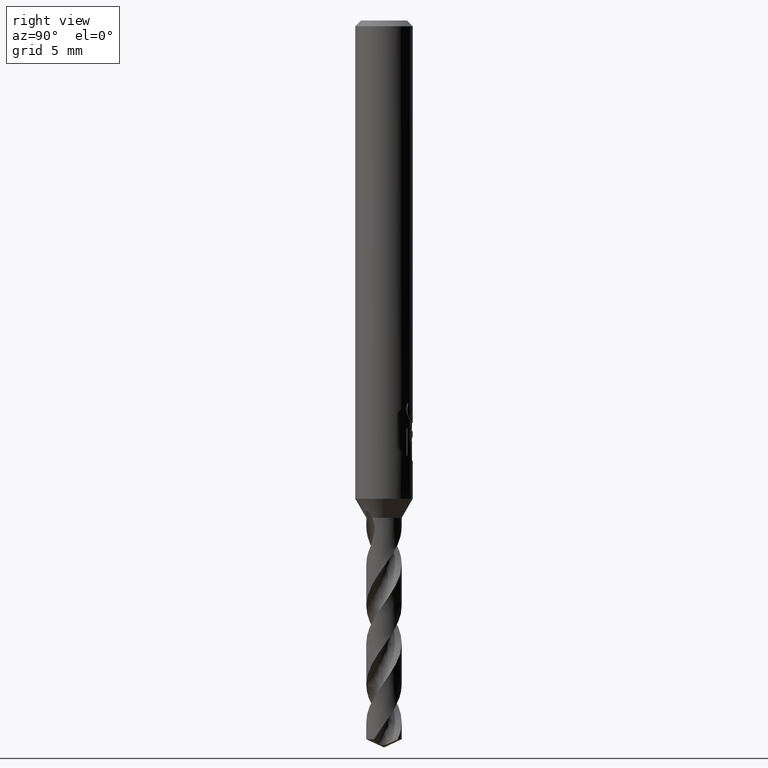
[diagram: clean part render]
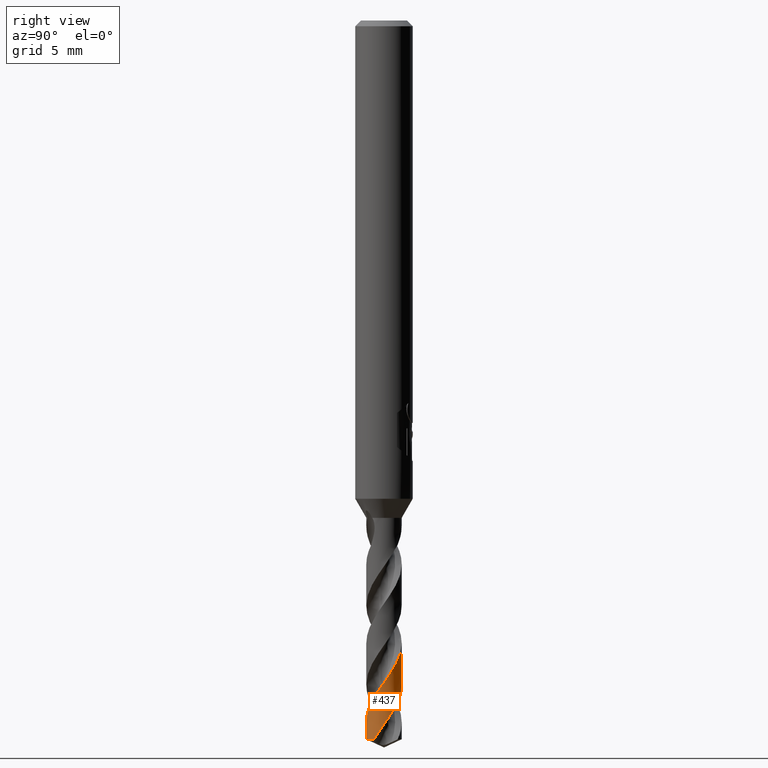
[diagram: same view with one face highlighted and labeled with its STEP entity id]
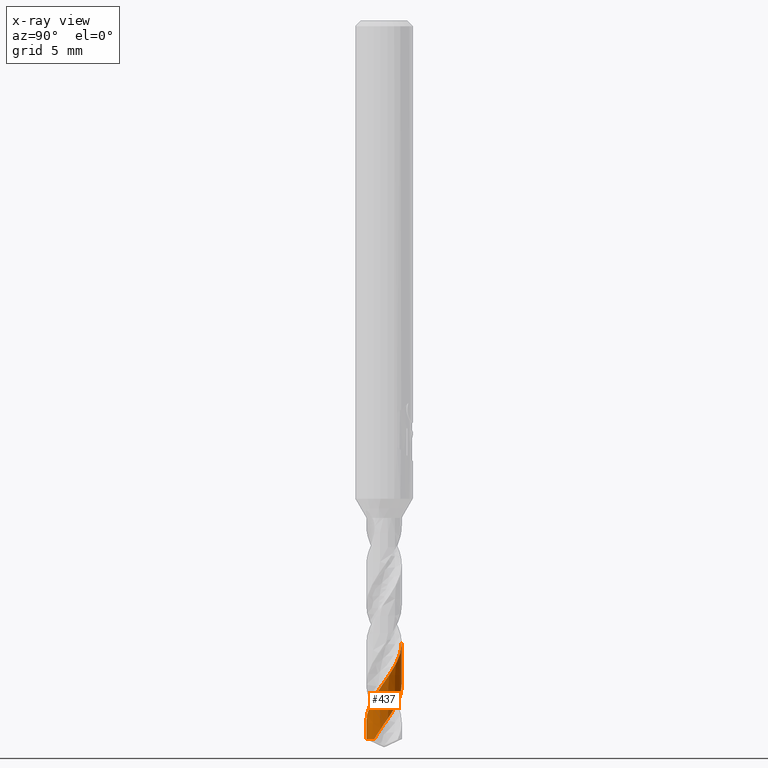
[diagram: x-ray of the same camera — body ghosted, the highlighted face saturated]
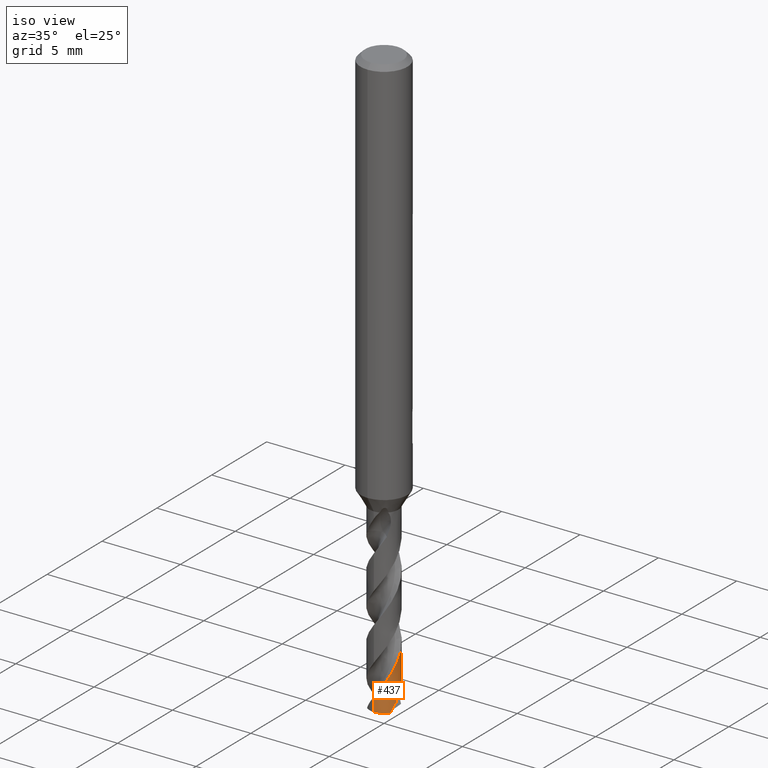
[diagram: same view with one face highlighted and labeled with its STEP entity id]
A machine part, right view. The second image highlights one B-rep face of the part: STEP entity #437.
The next image is the same camera in x-ray: the body ghosted, the highlighted face saturated — about 0% of this face is hidden behind the body in this view.
A second angle (iso view) of the same face is appended — the face is thin or edge-on in the first view.
In plain terms, the highlighted conical surface has half-angle 0 deg.
Its self-contained STEP definition (entity closure, byte-faithful):
#327=VERTEX_POINT('',#860);
#341=EDGE_CURVE('',#683,#727,#875,.T.);
#385=VERTEX_POINT('',#922);
#437=ADVANCED_FACE('',(#980),#981,.T.);
#453=EDGE_CURVE('',#385,#327,#999,.T.);
#553=EDGE_CURVE('',#627,#727,#1114,.T.);
#627=VERTEX_POINT('',#1195);
#683=VERTEX_POINT('',#1255);
#727=VERTEX_POINT('',#1300);
#747=EDGE_CURVE('',#627,#385,#1322,.T.);
#759=EDGE_CURVE('',#683,#327,#1334,.T.);
#860=CARTESIAN_POINT('',(1.10597392331517E-018,-0.924992254571093,-36.6726226609566));
#875=LINE('',#1967,#1968);
#922=CARTESIAN_POINT('',(1.13235198819291E-016,-0.925,-37.5686654162066));
#980=FACE_OUTER_BOUND('',#2981,.T.);
#981=CONICAL_SURFACE('',#2982,0.92495,8.64403942890488E-006);
#999=LINE('',#3080,#3081);
#1114=B_SPLINE_CURVE_WITH_KNOTS('',3,(#3588,#3589,#3590,#3591,#3592,#3593,#3594,#3595,#3596,#3597,#3598,#3599,#3600,#3601,#3602,#3603,#3604,#3605,#3606,#3607,#3608,#3609,#3610,#3611,#3612,#3613,#3614,#3615,#3616,#3617,#3618,#3619,#3620,#3621,#3622,#3623,#3624,#3625,#3626,#3627,#3628,#3629,#3630,#3631,#3632,#3633,#3634,#3635,#3636,#3637,#3638,#3639,#3640,#3641,#3642,#3643,#3644,#3645,#3646,#3647,#3648,#3649,#3650,#3651,#3652,#3653,#3654,#3655,#3656,#3657,#3658,#3659,#3660,#3661,#3662,#3663,#3664,#3665),.UNSPECIFIED.,.F.,.F.,(4,2,2,2,2,2,2,2,2,2,2,2,2,2,2,2,2,2,2,2,2,2,2,2,2,2,2,2,2,2,2,2,2,2,2,2,2,2,4),(0.0,0.175575967498542,0.360828519478574,1.05434292255817,1.14884404777667,1.83973464778452,2.04112506220054,2.49938006816865,2.93639938622632,3.47251715777154,3.67386599290652,4.13394250316937,4.57152570850511,5.10815653292086,5.3094364090775,5.77050128530134,6.20751829246539,6.74469876623538,6.94654488725072,7.40809844879235,7.84943071925,8.3871396234596,8.58765552124518,9.04980391125373,9.48430552195443,10.0217875624723,10.2183175586294,10.6105977311638,11.5362222291659,11.6507062022349,11.9174526200369,12.0692040576392,12.1504385658655,12.1848521361453,12.2009557850324,12.218424534362,12.2468275413846,12.3092312670282,12.3409704378504),.UNSPECIFIED.);
#1195=CARTESIAN_POINT('',(0.765392373126078,-0.519422289818632,-37.5686654162066));
#1255=CARTESIAN_POINT('',(-9.88212959703078E-015,0.924956570194605,-32.544416539254));
#1300=CARTESIAN_POINT('',(1.6430154934895E-014,0.924975379347988,-34.7203845617481));
#1322=CIRCLE('',#5082,0.925);
#1334=B_SPLINE_CURVE_WITH_KNOTS('',3,(#5096,#5097,#5098,#5099,#5100,#5101,#5102,#5103,#5104,#5105,#5106,#5107,#5108,#5109,#5110,#5111,#5112,#5113,#5114,#5115,#5116,#5117,#5118,#5119,#5120,#5121,#5122,#5123,#5124,#5125,#5126,#5127,#5128,#5129,#5130,#5131,#5132,#5133,#5134,#5135,#5136,#5137,#5138,#5139,#5140,#5141,#5142,#5143,#5144,#5145,#5146,#5147,#5148,#5149,#5150,#5151,#5152,#5153,#5154,#5155,#5156,#5157,#5158,#5159,#5160,#5161,#5162,#5163,#5164,#5165,#5166,#5167,#5168,#5169,#5170,#5171,#5172,#5173,#5174,#5175,#5176,#5177,#5178,#5179,#5180,#5181,#5182,#5183,#5184,#5185,#5186,#5187),.UNSPECIFIED.,.F.,.F.,(4,2,2,2,2,2,2,2,2,2,2,2,2,2,2,2,2,2,2,2,2,2,2,2,2,2,2,2,2,2,2,2,2,2,2,2,2,2,2,2,2,2,2,2,2,4),(0.0,0.0472198723982483,0.0574025586129521,0.0735373590386242,0.086846957736826,0.218038330745357,0.261691917204657,0.289044875786619,0.314351081743116,0.347731999434583,0.38465281818207,0.456731164138061,0.577930900790909,0.665369080380014,0.761272562820777,0.868852536537242,1.13142299141288,1.38932056889502,1.94142634502425,2.21493816542565,2.59325546582288,3.11005719064309,3.42902150272813,4.06135873815261,4.12153041123564,4.54978736992714,5.09998388409196,5.47381847869797,6.04042352439801,6.31233732223757,6.73123919419814,7.09755836358704,7.66420864868376,7.93565156013013,8.50201480850518,8.77416913846713,9.1762110815161,9.52846108662162,10.0689661573329,10.5930693893988,10.7136336676005,11.2022319711822,11.36974455639,11.5020738266503,11.956076389131,12.5428964801662),.UNSPECIFIED.);
#1967=CARTESIAN_POINT('',(-1.13310853606079E-016,0.92495,-31.7843327081033));
#1968=VECTOR('',#5311,1.0);
#2981=EDGE_LOOP('',(#5442,#5443,#5444,#5445,#5446));
#2982=AXIS2_PLACEMENT_3D('',#5447,#5448,#5449);
#3080=CARTESIAN_POINT('',(1.13229075787522E-016,-0.92495,-31.7843327081033));
#3081=VECTOR('',#5471,1.0);
#3588=CARTESIAN_POINT('',(0.765392373126077,-0.519422289818627,-37.5686654162066));
#3589=CARTESIAN_POINT('',(0.784380514247591,-0.491441664772919,-37.5208977650976));
#3590=CARTESIAN_POINT('',(0.801760341298683,-0.462529020240874,-37.4731786771621));
#3591=CARTESIAN_POINT('',(0.834075052254815,-0.401494554564502,-37.3747006776217));
#3592=CARTESIAN_POINT('',(0.848779109665413,-0.369376924747079,-37.32383971954));
#3593=CARTESIAN_POINT('',(0.909650441113357,-0.213519169443103,-37.0843601120505));
#3594=CARTESIAN_POINT('',(0.930761006716102,-0.0818331462465088,-36.9022410147496));
#3595=CARTESIAN_POINT('',(0.922677466299594,0.0678252243879808,-36.6879730523665));
#3596=CARTESIAN_POINT('',(0.921189631044293,0.0856921392008494,-36.6622317261582));
#3597=CARTESIAN_POINT('',(0.904467342095256,0.234112716960245,-36.448609682445));
#3598=CARTESIAN_POINT('',(0.862153669552173,0.359927809416848,-36.2671658103587));
#3599=CARTESIAN_POINT('',(0.775439273209969,0.505727394287139,-36.0251070000383));
#3600=CARTESIAN_POINT('',(0.753887361033258,0.537330934171917,-35.9701649795628));
#3601=CARTESIAN_POINT('',(0.676789642705819,0.636529680029753,-35.7910329888305));
#3602=CARTESIAN_POINT('',(0.613667366341773,0.697627858523507,-35.668607518485));
#3603=CARTESIAN_POINT('',(0.475043882724221,0.798064293605595,-35.4262369156211));
#3604=CARTESIAN_POINT('',(0.401238562023327,0.837578458419493,-35.3067460491545));
#3605=CARTESIAN_POINT('',(0.227409099607857,0.902394507541183,-35.0431808027575));
#3606=CARTESIAN_POINT('',(0.126518373206019,0.921927599049064,-34.9009925087592));
#3607=CARTESIAN_POINT('',(-0.0135443842239926,0.925666846836106,-34.7010999657655));
#3608=CARTESIAN_POINT('',(-0.0517352960644762,0.924321039060561,-34.6462148538446));
#3609=CARTESIAN_POINT('',(-0.176987178772398,0.91209304406096,-34.4667734413281));
#3610=CARTESIAN_POINT('',(-0.262599416249737,0.891256566140638,-34.3439838849488));
#3611=CARTESIAN_POINT('',(-0.421754644597107,0.827453400397262,-34.1012057547331));
#3612=CARTESIAN_POINT('',(-0.494563017818746,0.786079291227331,-33.9816806456056));
#3613=CARTESIAN_POINT('',(-0.642109173230414,0.673576255918907,-33.7180831370391));
#3614=CARTESIAN_POINT('',(-0.712431607998869,0.598645622455958,-33.5759001478793));
#3615=CARTESIAN_POINT('',(-0.790253966929606,0.482199260866015,-33.3760813727008));
#3616=CARTESIAN_POINT('',(-0.809457485789412,0.449220706216457,-33.3212680967693));
#3617=CARTESIAN_POINT('',(-0.865943165917025,0.336713958674217,-33.1417541615013));
#3618=CARTESIAN_POINT('',(-0.894002664012377,0.253085426200221,-33.0188265631593));
#3619=CARTESIAN_POINT('',(-0.924857011022342,0.0845115994394349,-32.7761784326368));
#3620=CARTESIAN_POINT('',(-0.92868649245956,0.0010516662091582,-32.6569309109765));
#3621=CARTESIAN_POINT('',(-0.91229888419972,-0.183571282582862,-32.3936029187602));
#3622=CARTESIAN_POINT('',(-0.886458177288607,-0.283031328303463,-32.251416843275));
#3623=CARTESIAN_POINT('',(-0.829479428524753,-0.411054092608912,-32.0515027355334));
#3624=CARTESIAN_POINT('',(-0.811802216592632,-0.44495118138851,-31.9965908967525));
#3625=CARTESIAN_POINT('',(-0.746745122658854,-0.55279584180876,-31.8169867676707));
#3626=CARTESIAN_POINT('',(-0.690983517157953,-0.621138288764363,-31.6940627697022));
#3627=CARTESIAN_POINT('',(-0.564327978826589,-0.737656893513796,-31.4503852564251));
#3628=CARTESIAN_POINT('',(-0.495114876271323,-0.785762831385403,-31.3300880839133));
#3629=CARTESIAN_POINT('',(-0.329356363733435,-0.870339594705546,-31.0657427521712));
#3630=CARTESIAN_POINT('',(-0.231380861533836,-0.901306147578169,-30.9235759782654));
#3631=CARTESIAN_POINT('',(-0.092965290213835,-0.921040290421541,-30.7240762827117));
#3632=CARTESIAN_POINT('',(-0.0551462363420279,-0.924078245976952,-30.6695847699962));
#3633=CARTESIAN_POINT('',(0.070546454734379,-0.926402604481755,-30.4903238564789));
#3634=CARTESIAN_POINT('',(0.158125360750212,-0.915561212184012,-30.36732869851));
#3635=CARTESIAN_POINT('',(0.322883147617352,-0.870689100030256,-30.1255065053255));
#3636=CARTESIAN_POINT('',(0.39924039905627,-0.838404283386813,-30.0071551437473));
#3637=CARTESIAN_POINT('',(0.558204430619525,-0.744532834237145,-29.7449189355787));
#3638=CARTESIAN_POINT('',(0.636770523360065,-0.678502398866895,-29.6029748500079));
#3639=CARTESIAN_POINT('',(0.727053779955913,-0.572948792529293,-29.4047685818148));
#3640=CARTESIAN_POINT('',(0.749440542849017,-0.543336581233159,-29.3513946775145));
#3641=CARTESIAN_POINT('',(0.811143642118129,-0.450603825405646,-29.1923342754664));
#3642=CARTESIAN_POINT('',(0.844796495363684,-0.383914183574037,-29.0875521904075));
#3643=CARTESIAN_POINT('',(0.929904437573281,-0.147782049829723,-28.7329990234062));
#3644=CARTESIAN_POINT('',(0.940798775969694,0.0322440173726759,-28.4829320863451));
#3645=CARTESIAN_POINT('',(0.897594460879294,0.224206390390812,-28.2048875980591));
#3646=CARTESIAN_POINT('',(0.892079880566107,0.245244618783504,-28.1743444321979));
#3647=CARTESIAN_POINT('',(0.87115837466461,0.314871322460574,-28.0728464959415));
#3648=CARTESIAN_POINT('',(0.852820978564851,0.361508246357305,-28.0048386394204));
#3649=CARTESIAN_POINT('',(0.818199552977871,0.432244456055311,-27.8924042406219));
#3650=CARTESIAN_POINT('',(0.804730022516641,0.456755589124895,-27.8515353882718));
#3651=CARTESIAN_POINT('',(0.782955603452119,0.492608387429901,-27.7876544695237));
#3652=CARTESIAN_POINT('',(0.775196456395363,0.50471641369002,-27.7652769211405));
#3653=CARTESIAN_POINT('',(0.763955298415356,0.521417214388152,-27.7331188333065));
#3654=CARTESIAN_POINT('',(0.757830120601282,0.530460106128628,-27.7154775181767));
#3655=CARTESIAN_POINT('',(0.744854341569095,0.548369048938007,-27.6818536544483));
#3656=CARTESIAN_POINT('',(0.740596587997576,0.554108386723738,-27.671212355858));
#3657=CARTESIAN_POINT('',(0.731436972390864,0.56615220808101,-27.6491603945154));
#3658=CARTESIAN_POINT('',(0.726519786947513,0.572451921477228,-27.637781924982));
#3659=CARTESIAN_POINT('',(0.713169262673191,0.589092371138201,-27.6081173738842));
#3660=CARTESIAN_POINT('',(0.704489464191559,0.59946020642504,-27.5900274459434));
#3661=CARTESIAN_POINT('',(0.675238722313121,0.632808396456147,-27.532911005788));
#3662=CARTESIAN_POINT('',(0.653116479417904,0.655760899366488,-27.4952229236873));
#3663=CARTESIAN_POINT('',(0.616086236916864,0.690065503264373,-27.4398981271289));
#3664=CARTESIAN_POINT('',(0.603039171646072,0.701512446089887,-27.4216055230125));
#3665=CARTESIAN_POINT('',(0.589400108508059,0.712790267500028,-27.4036));
#5082=AXIS2_PLACEMENT_3D('',#5843,#5844,#5845);
#5096=CARTESIAN_POINT('',(0.642884402266188,-0.664952704088734,-27.4036));
#5097=CARTESIAN_POINT('',(0.636670730167389,-0.670960316389235,-27.4167546620834));
#5098=CARTESIAN_POINT('',(0.630350256363287,-0.676903014539543,-27.4298787435103));
#5099=CARTESIAN_POINT('',(0.622513291085962,-0.684064234619346,-27.4458071380113));
#5100=CARTESIAN_POINT('',(0.621117586351333,-0.685331803957977,-27.4486309819827));
#5101=CARTESIAN_POINT('',(0.617495499677036,-0.688601152118165,-27.4559255978662));
#5102=CARTESIAN_POINT('',(0.615261021023809,-0.690598479960258,-27.4603930347927));
#5103=CARTESIAN_POINT('',(0.611156279511777,-0.69423168579655,-27.4685392536153));
#5104=CARTESIAN_POINT('',(0.609291234582837,-0.695869186862352,-27.4722182010309));
#5105=CARTESIAN_POINT('',(0.588932405707068,-0.713599020060686,-27.512132544792));
#5106=CARTESIAN_POINT('',(0.569763122647016,-0.729021417400453,-27.5475022624895));
#5107=CARTESIAN_POINT('',(0.542694634092185,-0.749011768626875,-27.5948947724372));
#5108=CARTESIAN_POINT('',(0.535847765299091,-0.753926042570833,-27.6066853964837));
#5109=CARTESIAN_POINT('',(0.52455627898528,-0.761797105883497,-27.6258554159362));
#5110=CARTESIAN_POINT('',(0.520174454790984,-0.764796016316716,-27.6332293865435));
#5111=CARTESIAN_POINT('',(0.511675445660537,-0.770505548744691,-27.6474224329941));
#5112=CARTESIAN_POINT('',(0.507566124642924,-0.773218842833083,-27.6542365232546));
#5113=CARTESIAN_POINT('',(0.497978296693273,-0.77943992170518,-27.6700398633243));
#5114=CARTESIAN_POINT('',(0.49248699615854,-0.782921255251314,-27.6790199642914));
#5115=CARTESIAN_POINT('',(0.480845125686128,-0.790130902348939,-27.6979467740213));
#5116=CARTESIAN_POINT('',(0.474694750655511,-0.793841084324896,-27.7078814418642));
#5117=CARTESIAN_POINT('',(0.456435780093565,-0.80456837721098,-27.7372622571889));
#5118=CARTESIAN_POINT('',(0.44439951876956,-0.811275514521527,-27.7565300327697));
#5119=CARTESIAN_POINT('',(0.411652810317654,-0.828583345822062,-27.8087957693636));
#5120=CARTESIAN_POINT('',(0.390805705849596,-0.838611878476652,-27.841820020077));
#5121=CARTESIAN_POINT('',(0.354495598099065,-0.854446511531871,-27.8985650815411));
#5122=CARTESIAN_POINT('',(0.339105796988886,-0.860670355718271,-27.9223870446021));
#5123=CARTESIAN_POINT('',(0.306504362594994,-0.872844770880619,-27.9722755420058));
#5124=CARTESIAN_POINT('',(0.28923303490341,-0.878720844410013,-27.9983781656676));
#5125=CARTESIAN_POINT('',(0.252162383859663,-0.890116507136401,-28.0536492051337));
#5126=CARTESIAN_POINT('',(0.232429246603116,-0.895472436434946,-28.0825878672011));
#5127=CARTESIAN_POINT('',(0.163725802129522,-0.911688680425173,-28.1825469533601));
#5128=CARTESIAN_POINT('',(0.114172098686781,-0.919206851963723,-28.2531396566232));
#5129=CARTESIAN_POINT('',(0.0152924774792318,-0.926097557551066,-28.3937981089318));
#5130=CARTESIAN_POINT('',(-0.0338357882271308,-0.92560042100938,-28.4636831497853));
#5131=CARTESIAN_POINT('',(-0.187138304649561,-0.911849044677926,-28.682727189828));
#5132=CARTESIAN_POINT('',(-0.289323049568507,-0.884757402143378,-28.8306400639428));
#5133=CARTESIAN_POINT('',(-0.432064760973752,-0.819458942547438,-29.053800762969));
#5134=CARTESIAN_POINT('',(-0.47748031300969,-0.793860955332012,-29.1275455134643));
#5135=CARTESIAN_POINT('',(-0.580082359614853,-0.724007681820136,-29.3035869686202));
#5136=CARTESIAN_POINT('',(-0.634606867034171,-0.676706862654977,-29.4052434796138));
#5137=CARTESIAN_POINT('',(-0.749245690148246,-0.551148820948002,-29.6473687813657));
#5138=CARTESIAN_POINT('',(-0.803576548775586,-0.468464101524314,-29.786356219687));
#5139=CARTESIAN_POINT('',(-0.868757700906004,-0.323197502485947,-30.0121131607113));
#5140=CARTESIAN_POINT('',(-0.888078314697722,-0.265513839459661,-30.0979862308302));
#5141=CARTESIAN_POINT('',(-0.928431434440351,-0.0892679858678862,-30.3553159326868));
#5142=CARTESIAN_POINT('',(-0.932190286468774,0.0321193606304813,-30.524461618685));
#5143=CARTESIAN_POINT('',(-0.9106766381107,0.162218027006106,-30.7115660109244));
#5144=CARTESIAN_POINT('',(-0.908598654722256,0.173479697674763,-30.7278176178016));
#5145=CARTESIAN_POINT('',(-0.890039556216944,0.264554065361956,-30.8598817359725));
#5146=CARTESIAN_POINT('',(-0.863270472960172,0.341955222903574,-30.9756975814263));
#5147=CARTESIAN_POINT('',(-0.779711809688741,0.508477071559505,-31.2403370473917));
#5148=CARTESIAN_POINT('',(-0.717194355809263,0.593382827497883,-31.3874862968421));
#5149=CARTESIAN_POINT('',(-0.590687878203269,0.715311652703752,-31.6376120614551));
#5150=CARTESIAN_POINT('',(-0.53393135308635,0.758633782673307,-31.7385007567061));
#5151=CARTESIAN_POINT('',(-0.379871984014234,0.85023178907695,-31.9927900851639));
#5152=CARTESIAN_POINT('',(-0.278175871075139,0.888692446123607,-32.1449226278485));
#5153=CARTESIAN_POINT('',(-0.121455006602374,0.918404163837313,-32.371877248822));
#5154=CARTESIAN_POINT('',(-0.0698662915752576,0.92376837505265,-32.4452948557599));
#5155=CARTESIAN_POINT('',(0.0617835587058118,0.926339158999107,-32.6320823697621));
#5156=CARTESIAN_POINT('',(0.141386233983722,0.917553694261432,-32.7447008550625));
#5157=CARTESIAN_POINT('',(0.286484297785731,0.882231029388376,-32.9572925171277));
#5158=CARTESIAN_POINT('',(0.352174042840417,0.858138516387603,-33.0561954880277));
#5159=CARTESIAN_POINT('',(0.511144240782312,0.77843078653719,-33.3085233486645));
#5160=CARTESIAN_POINT('',(0.598395003409461,0.713516411015554,-33.4606275911541));
#5161=CARTESIAN_POINT('',(0.707888013969335,0.597599043853701,-33.6875181995588));
#5162=CARTESIAN_POINT('',(0.74017867733634,0.557115237167617,-33.7608324771687));
#5163=CARTESIAN_POINT('',(0.828950925577923,0.424341312150787,-33.9874158186039));
#5164=CARTESIAN_POINT('',(0.872734607195676,0.324837611954639,-34.1395649671797));
#5165=CARTESIAN_POINT('',(0.910715333451356,0.169862832348588,-34.3665623040157));
#5166=CARTESIAN_POINT('',(0.918808400172845,0.118569091599295,-34.440053506118));
#5167=CARTESIAN_POINT('',(0.928095289360575,-0.00963901217360585,-34.6223827390907));
#5168=CARTESIAN_POINT('',(0.924102458800276,-0.0863921075357697,-34.7305290936682));
#5169=CARTESIAN_POINT('',(0.899020654343474,-0.227672892256932,-34.9347935369721));
#5170=CARTESIAN_POINT('',(0.880160014167414,-0.292253107355013,-35.0299609082657));
#5171=CARTESIAN_POINT('',(0.814977249253361,-0.449463077540138,-35.2714892937967));
#5172=CARTESIAN_POINT('',(0.759919159739436,-0.537298500107906,-35.4165076186263));
#5173=CARTESIAN_POINT('',(0.625419015014679,-0.688759997009473,-35.7048247953229));
#5174=CARTESIAN_POINT('',(0.547518090427442,-0.752200891662551,-35.8454279011459));
#5175=CARTESIAN_POINT('',(0.440951988558066,-0.81344326829193,-36.0197771110845));
#5176=CARTESIAN_POINT('',(0.420622768177745,-0.824138271278082,-36.0523721084301));
#5177=CARTESIAN_POINT('',(0.316070033441488,-0.874272607434882,-36.2172815090275));
#5178=CARTESIAN_POINT('',(0.226522908713135,-0.901651242981324,-36.3492055720578));
#5179=CARTESIAN_POINT('',(0.102726529137062,-0.919823952689885,-36.5267362400613));
#5180=CARTESIAN_POINT('',(0.07089684596898,-0.922823788241661,-36.5720019338703));
#5181=CARTESIAN_POINT('',(0.0137514524681485,-0.92523426019837,-36.6531208874993));
#5182=CARTESIAN_POINT('',(-0.0114803882577565,-0.925264707489735,-36.688884743738));
#5183=CARTESIAN_POINT('',(-0.123103529075962,-0.920837144238837,-36.8476634831414));
#5184=CARTESIAN_POINT('',(-0.208713039172987,-0.905294776949889,-36.9704412564362));
#5185=CARTESIAN_POINT('',(-0.397231916660742,-0.842830993752988,-37.2522298110565));
#5186=CARTESIAN_POINT('',(-0.496101047000617,-0.788651812783807,-37.409548982064));
#5187=CARTESIAN_POINT('',(-0.582802735768863,-0.718307713435076,-37.5686654162066));
#5311=DIRECTION('',(-1.05855456071962E-021,8.64403942879723E-006,-0.99999999996264));
#5442=ORIENTED_EDGE('',*,*,#341,.F.);
#5443=ORIENTED_EDGE('',*,*,#759,.T.);
#5444=ORIENTED_EDGE('',*,*,#453,.F.);
#5445=ORIENTED_EDGE('',*,*,#747,.F.);
#5446=ORIENTED_EDGE('',*,*,#553,.T.);
#5447=CARTESIAN_POINT('',(0.0,0.0,-31.7843327081033));
#5448=DIRECTION('',(0.0,-0.0,-1.0));
#5449=DIRECTION('',(0.0,1.0,0.0));
#5471=DIRECTION('',(-1.05855456071962E-021,8.64403942879723E-006,0.99999999996264));
#5843=CARTESIAN_POINT('',(0.0,0.0,-37.5686654162066));
#5844=DIRECTION('',(0.0,0.0,-1.0));
#5845=DIRECTION('',(0.0,1.0,0.0));